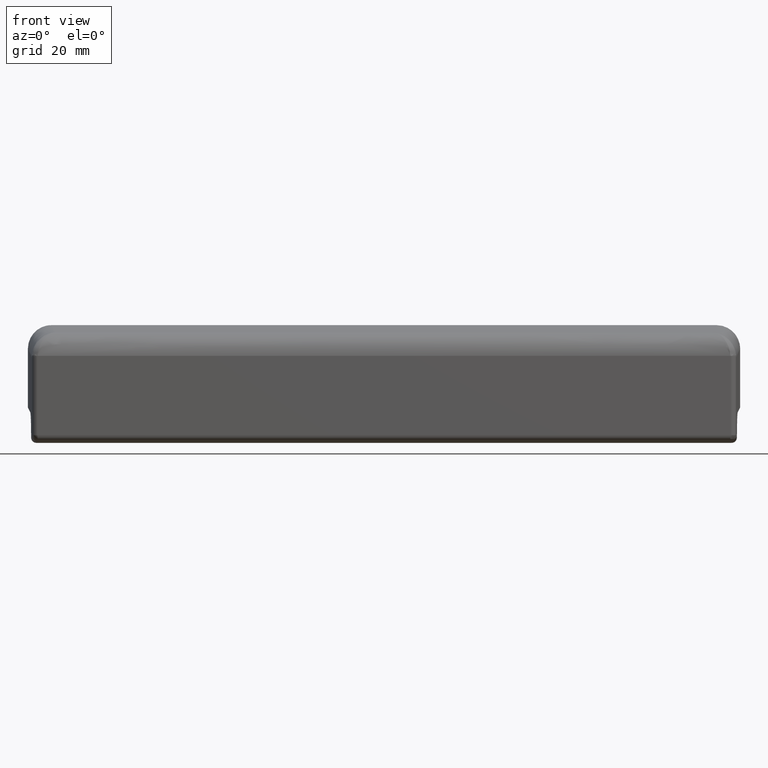
[diagram: clean part render]
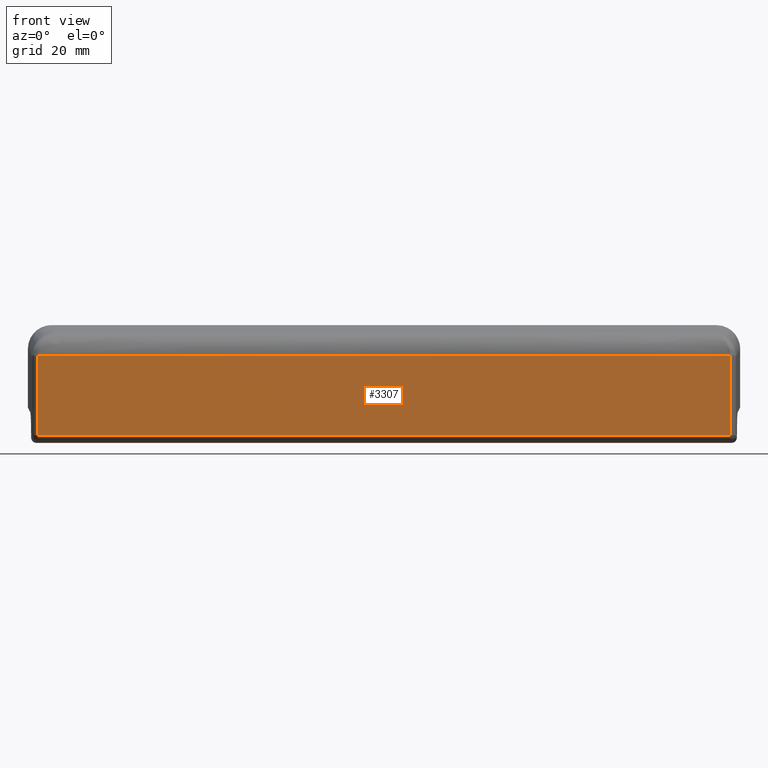
[diagram: same view with one face highlighted and labeled with its STEP entity id]
A machine part, front view. The second image highlights one B-rep face of the part: STEP entity #3307.
In plain terms, the highlighted face is a freeform B-spline surface patch.
Its self-contained STEP definition (entity closure, byte-faithful):
#1542=CARTESIAN_POINT('',(-111.828064793165000,-20.0,2.288765750975720));
#1543=VERTEX_POINT('',#1542);
#1610=CARTESIAN_POINT('',(-111.835896190556400,-20.0,2.071618129102350));
#1611=VERTEX_POINT('',#1610);
#1625=CARTESIAN_POINT('',(-111.828064793165000,-20.0,2.288765750975780));
#1626=CARTESIAN_POINT('',(-111.835896190556400,-20.0,2.180344009130126));
#1627=CARTESIAN_POINT('',(-111.835896190556400,-20.0,2.071618129102363));
#1635=(BOUNDED_CURVE()B_SPLINE_CURVE(2,(#1625,#1626,#1627),.UNSPECIFIED.,.F.,.U.)CURVE()GEOMETRIC_REPRESENTATION_ITEM()QUASI_UNIFORM_CURVE()RATIONAL_B_SPLINE_CURVE((1.0,0.999347568272870,1.0))REPRESENTATION_ITEM(''));
#1636=EDGE_CURVE('',#1543,#1611,#1635,.T.);
#1671=CARTESIAN_POINT('',(-111.835896190556400,-20.0,-11.193789324414720));
#1672=VERTEX_POINT('',#1671);
#1686=CARTESIAN_POINT('',(-111.835896190556400,-20.0,2.071618129102350));
#1687=CARTESIAN_POINT('',(-111.835896190556400,-20.0,-11.193789324414720));
#1688=QUASI_UNIFORM_CURVE('',1,(#1686,#1687),.UNSPECIFIED.,.F.,.U.);
#1689=EDGE_CURVE('',#1611,#1672,#1688,.T.);
#1880=CARTESIAN_POINT('',(5.835896190556350,-20.0,-11.193789324414720));
#1881=VERTEX_POINT('',#1880);
#1928=CARTESIAN_POINT('',(5.835896190556350,-20.0,2.071618129102350));
#1929=VERTEX_POINT('',#1928);
#1943=CARTESIAN_POINT('',(5.835896190556350,-20.0,-11.193789324414720));
#1944=CARTESIAN_POINT('',(5.835896190556350,-20.0,2.071618129102350));
#1945=QUASI_UNIFORM_CURVE('',1,(#1943,#1944),.UNSPECIFIED.,.F.,.U.);
#1946=EDGE_CURVE('',#1881,#1929,#1945,.T.);
#1979=CARTESIAN_POINT('',(5.828064793164811,-20.0,2.288765750975720));
#1980=VERTEX_POINT('',#1979);
#1994=CARTESIAN_POINT('',(5.835896190556350,-20.0,2.071618129102350));
#1995=CARTESIAN_POINT('',(5.835896190556228,-20.000000000000004,2.180344009129933));
#1996=CARTESIAN_POINT('',(5.828064793164811,-20.0,2.288765750975720));
#2004=(BOUNDED_CURVE()B_SPLINE_CURVE(2,(#1994,#1995,#1996),.UNSPECIFIED.,.F.,.U.)CURVE()GEOMETRIC_REPRESENTATION_ITEM()QUASI_UNIFORM_CURVE()RATIONAL_B_SPLINE_CURVE((1.0,0.999347568273024,1.0))REPRESENTATION_ITEM(''));
#2005=EDGE_CURVE('',#1929,#1980,#2004,.T.);
#2524=CARTESIAN_POINT('',(5.828064793164811,-20.0,2.288765750975720));
#2525=CARTESIAN_POINT('',(-111.828064793165000,-20.0,2.288765750975720));
#2526=QUASI_UNIFORM_CURVE('',1,(#2524,#2525),.UNSPECIFIED.,.F.,.U.);
#2527=EDGE_CURVE('',#1980,#1543,#2526,.T.);
#2559=CARTESIAN_POINT('',(-111.835896190556400,-20.0,-11.193789324414720));
#2560=CARTESIAN_POINT('',(5.835896190556350,-20.0,-11.193789324414720));
#2561=QUASI_UNIFORM_CURVE('',1,(#2559,#2560),.UNSPECIFIED.,.F.,.U.);
#2562=EDGE_CURVE('',#1672,#1881,#2561,.T.);
#3294=CARTESIAN_POINT('',(-117.713605305778000,-20.0,-11.867243177427831));
#3295=CARTESIAN_POINT('',(11.713605305777930,-20.0,-11.867243177427831));
#3296=CARTESIAN_POINT('',(-117.713605305778000,-20.0,2.962219724532261));
#3297=CARTESIAN_POINT('',(11.713605305777930,-20.0,2.962219724532261));
#3298=B_SPLINE_SURFACE_WITH_KNOTS('',1,1,((#3294,#3296),(#3295,#3297)),.UNSPECIFIED.,.F.,.F.,.U.,(2,2),(2,2),(0.0,129.427210611556010),(0.0,14.829462901960090),.UNSPECIFIED.);
#3299=ORIENTED_EDGE('',*,*,#1946,.T.);
#3300=ORIENTED_EDGE('',*,*,#2005,.T.);
#3301=ORIENTED_EDGE('',*,*,#2527,.T.);
#3302=ORIENTED_EDGE('',*,*,#1636,.T.);
#3303=ORIENTED_EDGE('',*,*,#1689,.T.);
#3304=ORIENTED_EDGE('',*,*,#2562,.T.);
#3305=EDGE_LOOP('',(#3299,#3300,#3301,#3302,#3303,#3304));
#3306=FACE_OUTER_BOUND('',#3305,.T.);
#3307=ADVANCED_FACE('',(#3306),#3298,.T.);